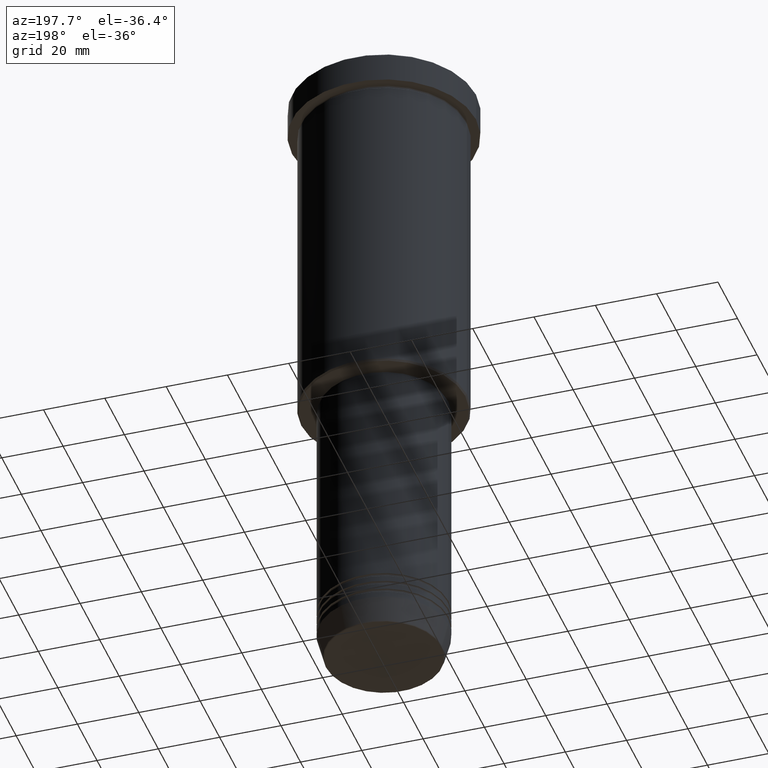
[diagram: clean part render]
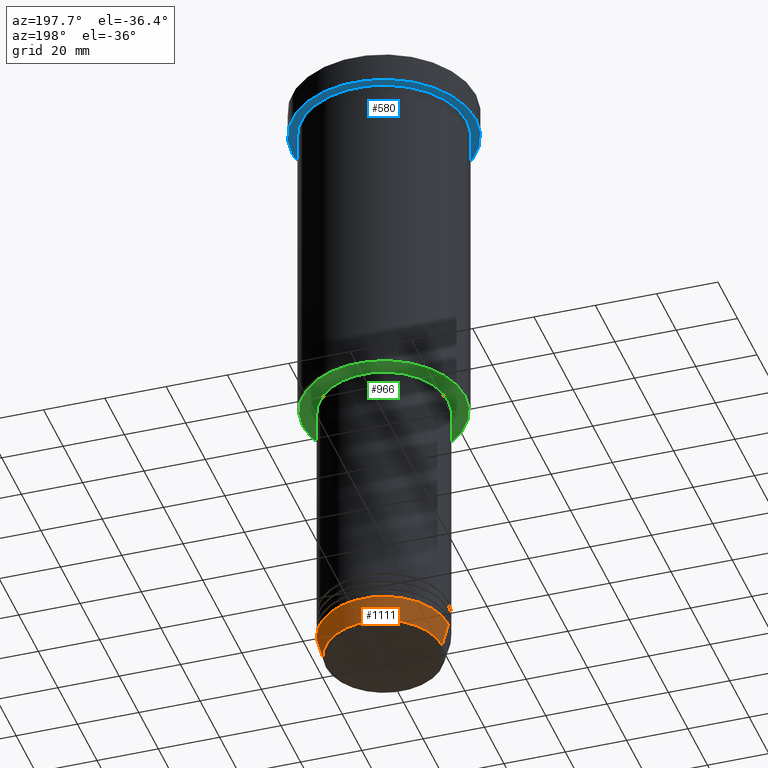
[diagram: same view with three faces highlighted in distinct colors, each labeled with its STEP entity id]
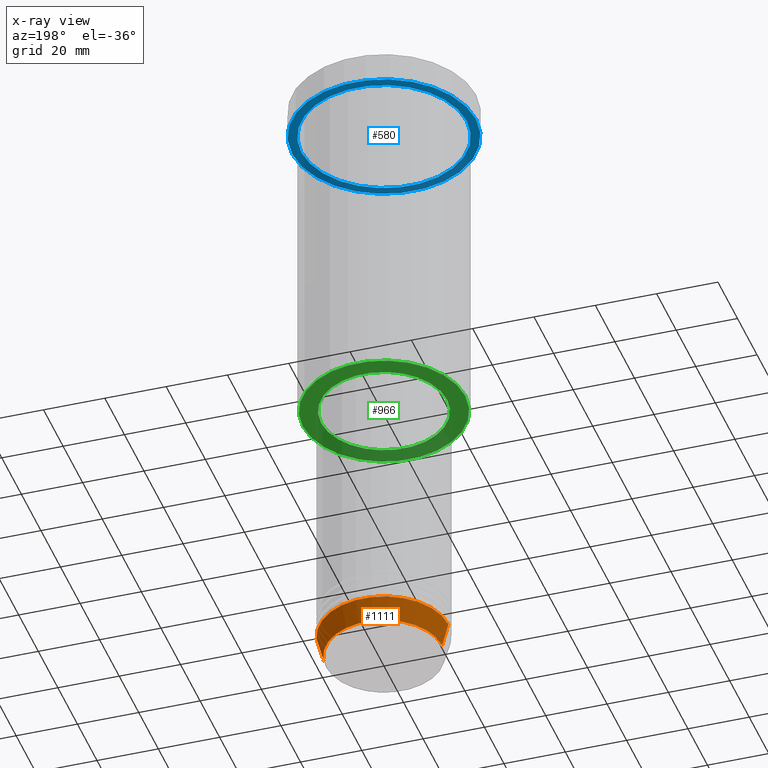
[diagram: x-ray of the same camera — body ghosted, the three highlighted faces saturated]
A machine part, auxiliary view with three faces highlighted in distinct colors.
The next image is the same camera in x-ray (body ghosted, the three faces saturated) — at least one of them is partly hidden behind the body in this view.
Their STEP definitions:

[orange] entity #1111 — the highlighted conical surface has half-angle 15 deg.
#30 = FACE_OUTER_BOUND ( 'NONE', #240, .T. ) ;
#107 = EDGE_CURVE ( 'NONE', #1156, #110, #153, .T. ) ;
#108 = CARTESIAN_POINT ( 'NONE',  ( 0.000000000000000000, 0.000000000000000000, -210.6294095225512990 ) ) ;
#110 = VERTEX_POINT ( 'NONE', #657 ) ;
#113 = DIRECTION ( 'NONE',  ( -0.000000000000000000, -0.000000000000000000, 1.000000000000000000 ) ) ;
#153 = CIRCLE ( 'NONE', #173, 18.95570587970606269 ) ;
#173 = AXIS2_PLACEMENT_3D ( 'NONE', #108, #677, #945 ) ;
#206 = VERTEX_POINT ( 'NONE', #423 ) ;
#219 = DIRECTION ( 'NONE',  ( 1.000000000000000000, 0.000000000000000000, 0.000000000000000000 ) ) ;
#236 = CARTESIAN_POINT ( 'NONE',  ( 21.00000000000000000, 0.000000000000000000, -203.0000000000000000 ) ) ;
#240 = EDGE_LOOP ( 'NONE', ( #479, #457, #797, #286 ) ) ;
#251 = DIRECTION ( 'NONE',  ( 0.2588190451025212391, 0.000000000000000000, 0.9659258262890680902 ) ) ;
#273 = AXIS2_PLACEMENT_3D ( 'NONE', #315, #113, #219 ) ;
#286 = ORIENTED_EDGE ( 'NONE', *, *, #885, .F. ) ;
#315 = CARTESIAN_POINT ( 'NONE',  ( 0.000000000000000000, 0.000000000000000000, -203.0000000000000000 ) ) ;
#332 = LINE ( 'NONE', #708, #589 ) ;
#336 = LINE ( 'NONE', #957, #647 ) ;
#358 = CARTESIAN_POINT ( 'NONE',  ( 18.95570587970606269, 0.000000000000000000, -210.6294095225512990 ) ) ;
#380 = VERTEX_POINT ( 'NONE', #236 ) ;
#423 = CARTESIAN_POINT ( 'NONE',  ( -21.00000000000000000, 2.571758278209441661E-15, -203.0000000000000000 ) ) ;
#457 = ORIENTED_EDGE ( 'NONE', *, *, #959, .T. ) ;
#459 = CARTESIAN_POINT ( 'NONE',  ( 0.000000000000000000, 0.000000000000000000, -203.0000000000000000 ) ) ;
#479 = ORIENTED_EDGE ( 'NONE', *, *, #107, .T. ) ;
#488 = DIRECTION ( 'NONE',  ( -0.000000000000000000, -0.000000000000000000, 1.000000000000000000 ) ) ;
#589 = VECTOR ( 'NONE', #251, 1000.000000000000114 ) ;
#647 = VECTOR ( 'NONE', #809, 1000.000000000000114 ) ;
#657 = CARTESIAN_POINT ( 'NONE',  ( -18.95570587970606269, 2.446581365662755730E-15, -210.6294095225512990 ) ) ;
#677 = DIRECTION ( 'NONE',  ( -0.000000000000000000, -0.000000000000000000, 1.000000000000000000 ) ) ;
#708 = CARTESIAN_POINT ( 'NONE',  ( 21.00000000000000000, 0.000000000000000000, -203.0000000000000000 ) ) ;
#720 = CONICAL_SURFACE ( 'NONE', #273, 21.00000000000000000, 0.2617993877991499629 ) ;
#797 = ORIENTED_EDGE ( 'NONE', *, *, #935, .F. ) ;
#809 = DIRECTION ( 'NONE',  ( -0.2588190451025212391, 3.169619151431771721E-17, 0.9659258262890680902 ) ) ;
#846 = DIRECTION ( 'NONE',  ( 1.000000000000000000, 0.000000000000000000, 0.000000000000000000 ) ) ;
#885 = EDGE_CURVE ( 'NONE', #1156, #380, #332, .T. ) ;
#935 = EDGE_CURVE ( 'NONE', #380, #206, #1143, .T. ) ;
#945 = DIRECTION ( 'NONE',  ( 1.000000000000000000, 0.000000000000000000, 0.000000000000000000 ) ) ;
#957 = CARTESIAN_POINT ( 'NONE',  ( -21.00000000000000000, 2.571758278209441661E-15, -203.0000000000000000 ) ) ;
#959 = EDGE_CURVE ( 'NONE', #110, #206, #336, .T. ) ;
#997 = AXIS2_PLACEMENT_3D ( 'NONE', #459, #488, #846 ) ;
#1111 = ADVANCED_FACE ( 'NONE', ( #30 ), #720, .T. ) ;
#1143 = CIRCLE ( 'NONE', #997, 21.00000000000000000 ) ;
#1156 = VERTEX_POINT ( 'NONE', #358 ) ;

[blue] entity #580 — the highlighted planar face has unit normal (0, 0, -1).
#11 = DIRECTION ( 'NONE',  ( -1.000000000000000000, 0.000000000000000000, 0.000000000000000000 ) ) ;
#49 = DIRECTION ( 'NONE',  ( 1.000000000000000000, 0.000000000000000000, 0.000000000000000000 ) ) ;
#59 = CARTESIAN_POINT ( 'NONE',  ( 30.00000000000000000, 0.000000000000000000, -9.999999999999992895 ) ) ;
#75 = EDGE_CURVE ( 'NONE', #704, #683, #813, .T. ) ;
#97 = DIRECTION ( 'NONE',  ( -0.000000000000000000, -0.000000000000000000, 1.000000000000000000 ) ) ;
#168 = CARTESIAN_POINT ( 'NONE',  ( -27.00000000000000355, 0.000000000000000000, -9.999999999999992895 ) ) ;
#186 = CARTESIAN_POINT ( 'NONE',  ( 0.000000000000000000, 0.000000000000000000, -9.999999999999992895 ) ) ;
#188 = PLANE ( 'NONE',  #1172 ) ;
#193 = DIRECTION ( 'NONE',  ( -0.000000000000000000, -0.000000000000000000, 1.000000000000000000 ) ) ;
#207 = AXIS2_PLACEMENT_3D ( 'NONE', #376, #193, #556 ) ;
#213 = EDGE_LOOP ( 'NONE', ( #619, #984 ) ) ;
#257 = VERTEX_POINT ( 'NONE', #59 ) ;
#293 = EDGE_CURVE ( 'NONE', #257, #1080, #850, .T. ) ;
#343 = EDGE_LOOP ( 'NONE', ( #1132, #1014 ) ) ;
#349 = DIRECTION ( 'NONE',  ( 1.000000000000000000, 0.000000000000000000, 0.000000000000000000 ) ) ;
#373 = CIRCLE ( 'NONE', #1050, 27.00000000000000355 ) ;
#376 = CARTESIAN_POINT ( 'NONE',  ( 0.000000000000000000, 0.000000000000000000, -9.999999999999992895 ) ) ;
#458 = CARTESIAN_POINT ( 'NONE',  ( 0.000000000000000000, 30.00000000000000000, -9.999999999999992895 ) ) ;
#465 = EDGE_CURVE ( 'NONE', #1080, #257, #976, .T. ) ;
#498 = CARTESIAN_POINT ( 'NONE',  ( 0.000000000000000000, 0.000000000000000000, -9.999999999999992895 ) ) ;
#513 = CARTESIAN_POINT ( 'NONE',  ( 0.000000000000000000, 0.000000000000000000, -9.999999999999992895 ) ) ;
#544 = FACE_BOUND ( 'NONE', #343, .T. ) ;
#556 = DIRECTION ( 'NONE',  ( -1.000000000000000000, 0.000000000000000000, 0.000000000000000000 ) ) ;
#558 = DIRECTION ( 'NONE',  ( 0.000000000000000000, 0.000000000000000000, -1.000000000000000000 ) ) ;
#580 = ADVANCED_FACE ( 'NONE', ( #544, #1005 ), #188, .T. ) ;
#585 = AXIS2_PLACEMENT_3D ( 'NONE', #513, #871, #49 ) ;
#619 = ORIENTED_EDGE ( 'NONE', *, *, #293, .F. ) ;
#650 = EDGE_CURVE ( 'NONE', #683, #704, #373, .T. ) ;
#683 = VERTEX_POINT ( 'NONE', #168 ) ;
#704 = VERTEX_POINT ( 'NONE', #1082 ) ;
#813 = CIRCLE ( 'NONE', #207, 27.00000000000000355 ) ;
#850 = CIRCLE ( 'NONE', #949, 30.00000000000000000 ) ;
#871 = DIRECTION ( 'NONE',  ( -0.000000000000000000, -0.000000000000000000, 1.000000000000000000 ) ) ;
#949 = AXIS2_PLACEMENT_3D ( 'NONE', #498, #1149, #349 ) ;
#976 = CIRCLE ( 'NONE', #585, 30.00000000000000000 ) ;
#984 = ORIENTED_EDGE ( 'NONE', *, *, #465, .F. ) ;
#1005 = FACE_OUTER_BOUND ( 'NONE', #213, .T. ) ;
#1014 = ORIENTED_EDGE ( 'NONE', *, *, #75, .T. ) ;
#1043 = CARTESIAN_POINT ( 'NONE',  ( -30.00000000000000000, 3.673940397442059178E-15, -9.999999999999992895 ) ) ;
#1050 = AXIS2_PLACEMENT_3D ( 'NONE', #186, #97, #11 ) ;
#1080 = VERTEX_POINT ( 'NONE', #1043 ) ;
#1082 = CARTESIAN_POINT ( 'NONE',  ( 27.00000000000000355, 3.306546357697854128E-15, -9.999999999999992895 ) ) ;
#1101 = DIRECTION ( 'NONE',  ( -1.000000000000000000, 0.000000000000000000, -0.000000000000000000 ) ) ;
#1132 = ORIENTED_EDGE ( 'NONE', *, *, #650, .T. ) ;
#1149 = DIRECTION ( 'NONE',  ( -0.000000000000000000, -0.000000000000000000, 1.000000000000000000 ) ) ;
#1172 = AXIS2_PLACEMENT_3D ( 'NONE', #458, #558, #1101 ) ;

[green] entity #966 — the highlighted planar face has unit normal (0, 0, -1).
#19 = CARTESIAN_POINT ( 'NONE',  ( -26.49999999999999645, 3.275930187719169552E-15, -116.0000000000000000 ) ) ;
#81 = VERTEX_POINT ( 'NONE', #19 ) ;
#122 = CARTESIAN_POINT ( 'NONE',  ( 0.000000000000000000, 0.000000000000000000, -116.0000000000000000 ) ) ;
#133 = CIRCLE ( 'NONE', #360, 26.49999999999999645 ) ;
#163 = VERTEX_POINT ( 'NONE', #632 ) ;
#165 = VERTEX_POINT ( 'NONE', #492 ) ;
#234 = ORIENTED_EDGE ( 'NONE', *, *, #605, .T. ) ;
#239 = FACE_BOUND ( 'NONE', #673, .T. ) ;
#261 = DIRECTION ( 'NONE',  ( -1.000000000000000000, 0.000000000000000000, -0.000000000000000000 ) ) ;
#274 = CIRCLE ( 'NONE', #888, 20.50000000000000000 ) ;
#306 = DIRECTION ( 'NONE',  ( 0.000000000000000000, 0.000000000000000000, -1.000000000000000000 ) ) ;
#360 = AXIS2_PLACEMENT_3D ( 'NONE', #122, #391, #942 ) ;
#366 = PLANE ( 'NONE',  #851 ) ;
#391 = DIRECTION ( 'NONE',  ( 0.000000000000000000, 0.000000000000000000, -1.000000000000000000 ) ) ;
#431 = EDGE_CURVE ( 'NONE', #163, #776, #1104, .T. ) ;
#468 = AXIS2_PLACEMENT_3D ( 'NONE', #787, #485, #598 ) ;
#485 = DIRECTION ( 'NONE',  ( -0.000000000000000000, -0.000000000000000000, 1.000000000000000000 ) ) ;
#492 = CARTESIAN_POINT ( 'NONE',  ( 26.49999999999999645, 0.000000000000000000, -116.0000000000000000 ) ) ;
#496 = EDGE_CURVE ( 'NONE', #81, #165, #772, .T. ) ;
#523 = CARTESIAN_POINT ( 'NONE',  ( -20.50000000000000000, 2.510525938252074481E-15, -116.0000000000000000 ) ) ;
#575 = DIRECTION ( 'NONE',  ( 1.000000000000000000, 0.000000000000000000, 0.000000000000000000 ) ) ;
#598 = DIRECTION ( 'NONE',  ( 1.000000000000000000, 0.000000000000000000, 0.000000000000000000 ) ) ;
#605 = EDGE_CURVE ( 'NONE', #776, #163, #274, .T. ) ;
#629 = ORIENTED_EDGE ( 'NONE', *, *, #496, .T. ) ;
#632 = CARTESIAN_POINT ( 'NONE',  ( 20.50000000000000000, 0.000000000000000000, -116.0000000000000000 ) ) ;
#670 = DIRECTION ( 'NONE',  ( -0.000000000000000000, -0.000000000000000000, 1.000000000000000000 ) ) ;
#673 = EDGE_LOOP ( 'NONE', ( #938, #234 ) ) ;
#722 = CARTESIAN_POINT ( 'NONE',  ( 0.000000000000000000, 27.00000000000000355, -116.0000000000000000 ) ) ;
#741 = ORIENTED_EDGE ( 'NONE', *, *, #1146, .T. ) ;
#772 = CIRCLE ( 'NONE', #917, 26.49999999999999645 ) ;
#776 = VERTEX_POINT ( 'NONE', #523 ) ;
#787 = CARTESIAN_POINT ( 'NONE',  ( 0.000000000000000000, 0.000000000000000000, -116.0000000000000000 ) ) ;
#851 = AXIS2_PLACEMENT_3D ( 'NONE', #722, #1077, #261 ) ;
#888 = AXIS2_PLACEMENT_3D ( 'NONE', #924, #670, #575 ) ;
#917 = AXIS2_PLACEMENT_3D ( 'NONE', #1125, #306, #1038 ) ;
#924 = CARTESIAN_POINT ( 'NONE',  ( 0.000000000000000000, 0.000000000000000000, -116.0000000000000000 ) ) ;
#938 = ORIENTED_EDGE ( 'NONE', *, *, #431, .T. ) ;
#942 = DIRECTION ( 'NONE',  ( -1.000000000000000000, 0.000000000000000000, 0.000000000000000000 ) ) ;
#966 = ADVANCED_FACE ( 'NONE', ( #1163, #239 ), #366, .T. ) ;
#1038 = DIRECTION ( 'NONE',  ( -1.000000000000000000, 0.000000000000000000, 0.000000000000000000 ) ) ;
#1061 = EDGE_LOOP ( 'NONE', ( #741, #629 ) ) ;
#1077 = DIRECTION ( 'NONE',  ( 0.000000000000000000, 0.000000000000000000, -1.000000000000000000 ) ) ;
#1104 = CIRCLE ( 'NONE', #468, 20.50000000000000000 ) ;
#1125 = CARTESIAN_POINT ( 'NONE',  ( 0.000000000000000000, 0.000000000000000000, -116.0000000000000000 ) ) ;
#1146 = EDGE_CURVE ( 'NONE', #165, #81, #133, .T. ) ;
#1163 = FACE_OUTER_BOUND ( 'NONE', #1061, .T. ) ;